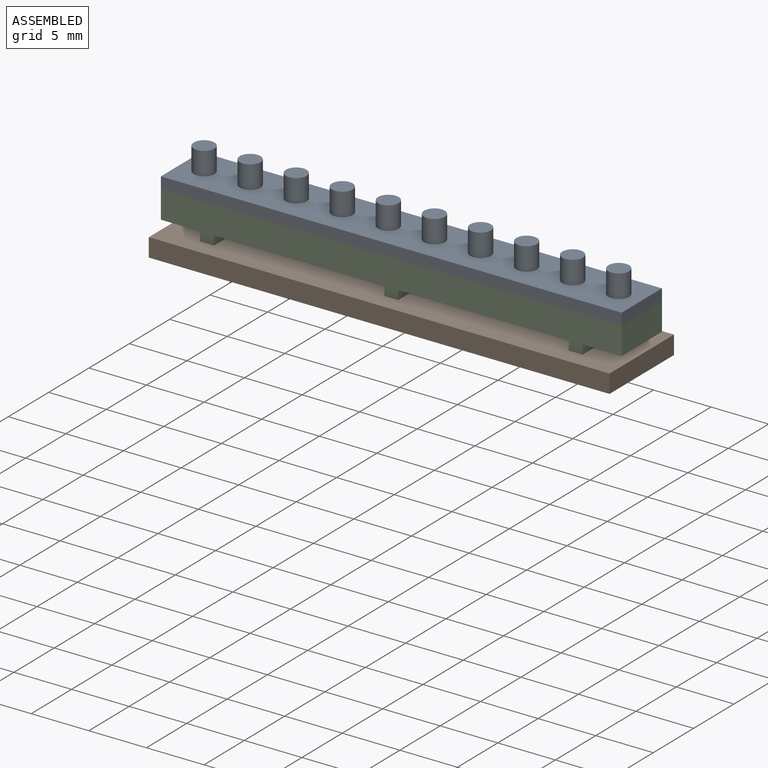
[diagram: assembled view]
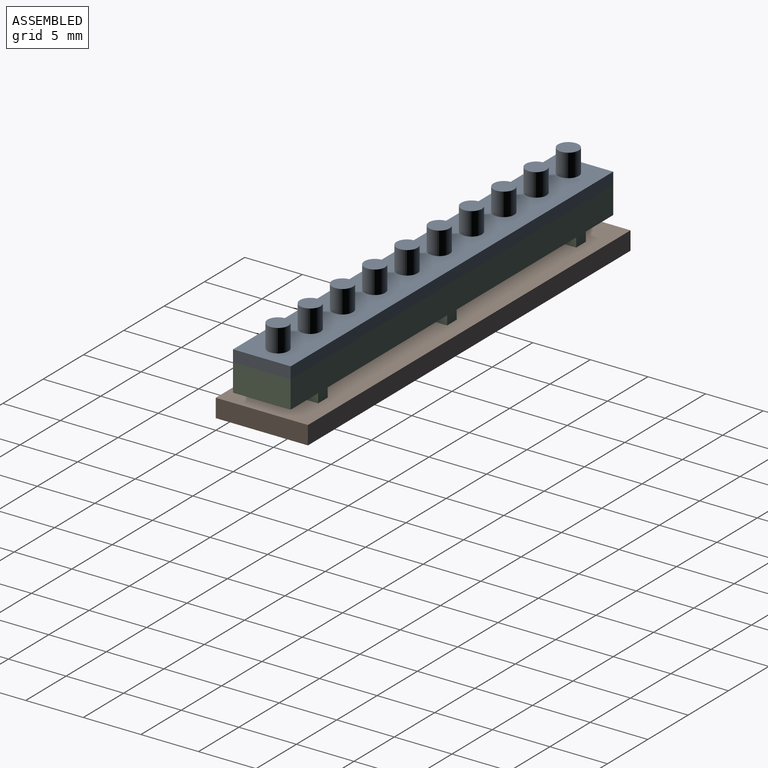
[diagram: assembled view, second angle]
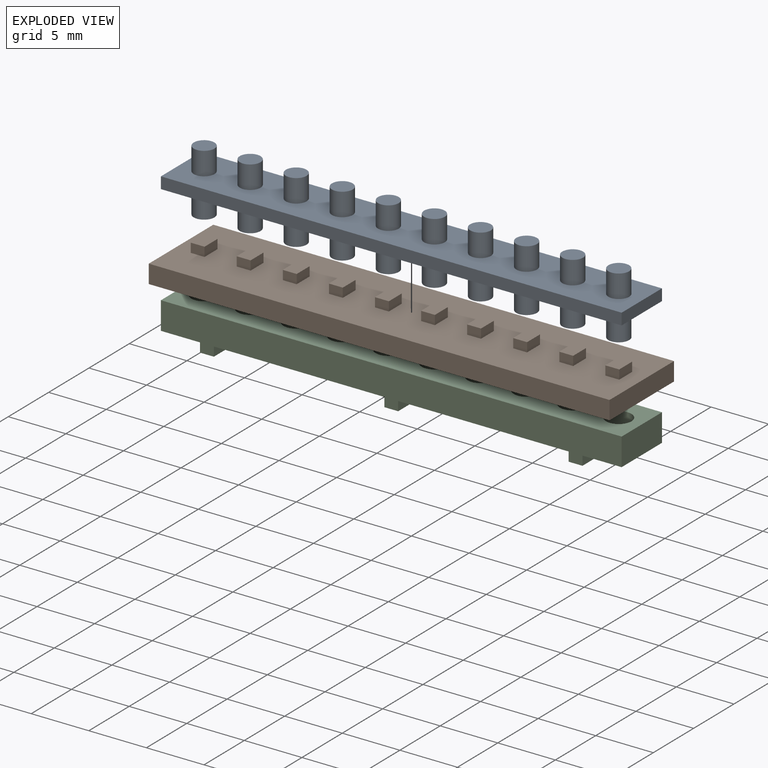
[diagram: exploded view]
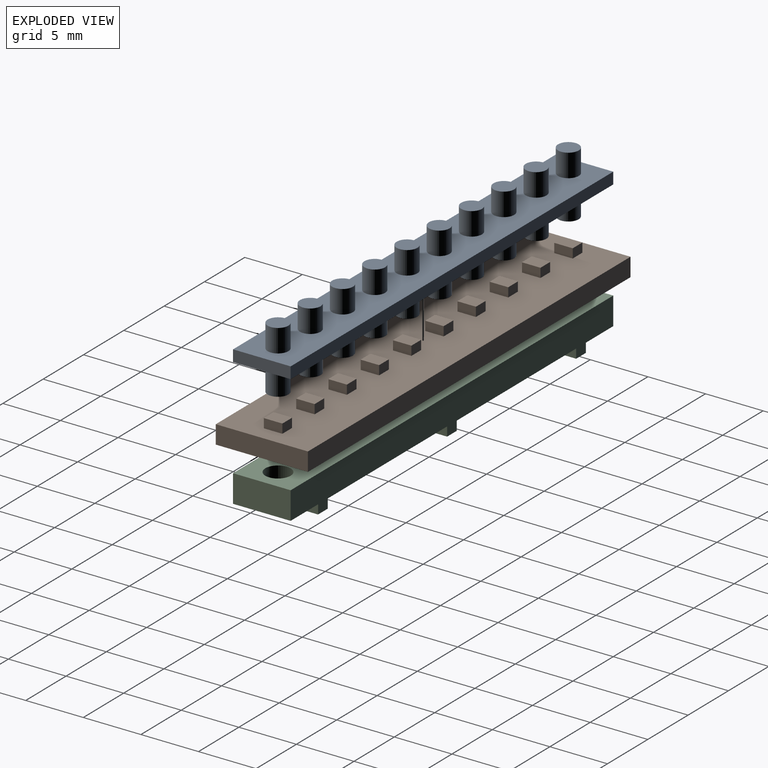
[diagram: exploded view, second angle]
ASSEMBLY  parts=3 mates=2
PART A: 46 faces, bbox 40x5x5.4 mm
  f0: cylinder r=0.9mm len=2mm, axis (0,0,-1), area 11.3mm2, adj f1,f5
  f1: plane 1.8x1.8mm, normal (0,0,1), area 2.5mm2, adj f0
  f2: plane 40x1mm, normal (0,1,0), area 40mm2, adj f3,f5,f6,f43
  f3: plane 5x1mm, normal (-1,0,0), area 5mm2, adj f2,f4,f5,f6
  f4: plane 40x1mm, normal (0,-1,0), area 40mm2, adj f3,f5,f6,f43
  f5: plane 40x5mm, normal (0,0,1), area 174.6mm2, adj f0,f2,f3,f4,f9,f13,f17,f21
  f6: plane 40x5mm, normal (0,0,-1), area 174.6mm2, adj f2,f3,f4,f8,f12,f16,f20,f24
  f7: plane 1.8x1.8mm, normal (0,0,-1), area 2.5mm2, adj f8
  f8: cylinder r=0.9mm len=2.4mm, axis (0,0,-1), area 13.6mm2, adj f6,f7
  f9: cylinder r=0.9mm len=2mm, axis (0,0,-1), area 11.3mm2, adj f5,f10
  f10: plane 1.8x1.8mm, normal (0,0,1), area 2.5mm2, adj f9
  f11: plane 1.8x1.8mm, normal (0,0,-1), area 2.5mm2, adj f12
  f12: cylinder r=0.9mm len=2.4mm, axis (0,0,-1), area 13.6mm2, adj f6,f11
  f13: cylinder r=0.9mm len=2mm, axis (0,0,-1), area 11.3mm2, adj f5,f14
  f14: plane 1.8x1.8mm, normal (0,0,1), area 2.5mm2, adj f13
  f15: plane 1.8x1.8mm, normal (0,0,-1), area 2.5mm2, adj f16
  f16: cylinder r=0.9mm len=2.4mm, axis (0,0,-1), area 13.6mm2, adj f6,f15
  f17: cylinder r=0.9mm len=2mm, axis (0,0,-1), area 11.3mm2, adj f5,f18
  f18: plane 1.8x1.8mm, normal (0,0,1), area 2.5mm2, adj f17
  f19: plane 1.8x1.8mm, normal (0,0,-1), area 2.5mm2, adj f20
  f20: cylinder r=0.9mm len=2.4mm, axis (0,0,-1), area 13.6mm2, adj f6,f19
  f21: cylinder r=0.9mm len=2mm, axis (0,0,-1), area 11.3mm2, adj f5,f22
  f22: plane 1.8x1.8mm, normal (0,0,1), area 2.5mm2, adj f21
  f23: plane 1.8x1.8mm, normal (0,0,-1), area 2.5mm2, adj f24
  f24: cylinder r=0.9mm len=2.4mm, axis (0,0,-1), area 13.6mm2, adj f6,f23
  f25: cylinder r=0.9mm len=2mm, axis (0,0,-1), area 11.3mm2, adj f5,f26
  f26: plane 1.8x1.8mm, normal (0,0,1), area 2.5mm2, adj f25
  f27: plane 1.8x1.8mm, normal (0,0,-1), area 2.5mm2, adj f28
  f28: cylinder r=0.9mm len=2.4mm, axis (0,0,-1), area 13.6mm2, adj f6,f27
  f29: cylinder r=0.9mm len=2mm, axis (0,0,-1), area 11.3mm2, adj f5,f30
  f30: plane 1.8x1.8mm, normal (0,0,1), area 2.5mm2, adj f29
  f31: plane 1.8x1.8mm, normal (0,0,-1), area 2.5mm2, adj f32
  f32: cylinder r=0.9mm len=2.4mm, axis (0,0,-1), area 13.6mm2, adj f6,f31
  f33: cylinder r=0.9mm len=2mm, axis (0,0,-1), area 11.3mm2, adj f5,f34
  f34: plane 1.8x1.8mm, normal (0,0,1), area 2.5mm2, adj f33
  f35: plane 1.8x1.8mm, normal (0,0,-1), area 2.5mm2, adj f36
  f36: cylinder r=0.9mm len=2.4mm, axis (0,0,-1), area 13.6mm2, adj f6,f35
  f37: cylinder r=0.9mm len=2mm, axis (0,0,-1), area 11.3mm2, adj f5,f38
  f38: plane 1.8x1.8mm, normal (0,0,1), area 2.5mm2, adj f37
  f39: plane 1.8x1.8mm, normal (0,0,-1), area 2.5mm2, adj f40
  f40: cylinder r=0.9mm len=2.4mm, axis (0,0,-1), area 13.6mm2, adj f6,f39
  f41: cylinder r=0.9mm len=2mm, axis (0,0,-1), area 11.3mm2, adj f5,f42
  f42: plane 1.8x1.8mm, normal (0,0,1), area 2.5mm2, adj f41
  f43: plane 5x1mm, normal (1,0,0), area 5mm2, adj f2,f4,f5,f6
  f44: plane 1.8x1.8mm, normal (0,0,-1), area 2.5mm2, adj f45
  f45: cylinder r=0.9mm len=2.4mm, axis (0,0,-1), area 13.6mm2, adj f6,f44
PART B: 56 faces, bbox 40x8x2.4 mm
  f0: plane 40x8mm, normal (0,0,1), area 300.8mm2, adj f1,f2,f3,f4,f6,f7,f8,f9
  f1: plane 8x1.6mm, normal (1,0,0), area 12.8mm2, adj f0,f2,f4,f5
  f2: plane 40x1.6mm, normal (0,1,0), area 64mm2, adj f0,f1,f3,f5
  f3: plane 8x1.6mm, normal (-1,0,0), area 12.8mm2, adj f0,f2,f4,f5
  f4: plane 40x1.6mm, normal (0,-1,0), area 64mm2, adj f0,f1,f3,f5
  f5: plane 40x8mm, normal (0,0,-1), area 320mm2, adj f1,f2,f3,f4
  f6: plane 1.6x0.8mm, normal (1,0,0), area 1.3mm2, adj f0,f7,f9,f10
  f7: plane 1.2x0.8mm, normal (0,1,0), area 1mm2, adj f0,f6,f8,f10
  f8: plane 1.6x0.8mm, normal (-1,0,0), area 1.3mm2, adj f0,f7,f9,f10
  f9: plane 1.2x0.8mm, normal (0,-1,0), area 1mm2, adj f0,f6,f8,f10
  f10: plane 1.6x1.2mm, normal (0,0,1), area 1.9mm2, adj f6,f7,f8,f9
  f11: plane 1.6x0.8mm, normal (1,0,0), area 1.3mm2, adj f0,f12,f14,f15
  f12: plane 1.2x0.8mm, normal (0,1,0), area 1mm2, adj f0,f11,f13,f15
  f13: plane 1.6x0.8mm, normal (-1,0,0), area 1.3mm2, adj f0,f12,f14,f15
  f14: plane 1.2x0.8mm, normal (0,-1,0), area 1mm2, adj f0,f11,f13,f15
  f15: plane 1.6x1.2mm, normal (0,0,1), area 1.9mm2, adj f11,f12,f13,f14
  f16: plane 1.6x0.8mm, normal (1,0,0), area 1.3mm2, adj f0,f17,f19,f20
  f17: plane 1.2x0.8mm, normal (0,1,0), area 1mm2, adj f0,f16,f18,f20
  f18: plane 1.6x0.8mm, normal (-1,0,0), area 1.3mm2, adj f0,f17,f19,f20
  f19: plane 1.2x0.8mm, normal (0,-1,0), area 1mm2, adj f0,f16,f18,f20
  f20: plane 1.6x1.2mm, normal (0,0,1), area 1.9mm2, adj f16,f17,f18,f19
  f21: plane 1.6x0.8mm, normal (1,0,0), area 1.3mm2, adj f0,f22,f24,f25
  f22: plane 1.2x0.8mm, normal (0,1,0), area 1mm2, adj f0,f21,f23,f25
  f23: plane 1.6x0.8mm, normal (-1,0,0), area 1.3mm2, adj f0,f22,f24,f25
  f24: plane 1.2x0.8mm, normal (0,-1,0), area 1mm2, adj f0,f21,f23,f25
  f25: plane 1.6x1.2mm, normal (0,0,1), area 1.9mm2, adj f21,f22,f23,f24
  f26: plane 1.6x0.8mm, normal (1,0,0), area 1.3mm2, adj f0,f27,f29,f30
  f27: plane 1.2x0.8mm, normal (0,1,0), area 1mm2, adj f0,f26,f28,f30
  f28: plane 1.6x0.8mm, normal (-1,0,0), area 1.3mm2, adj f0,f27,f29,f30
  f29: plane 1.2x0.8mm, normal (0,-1,0), area 1mm2, adj f0,f26,f28,f30
  f30: plane 1.6x1.2mm, normal (0,0,1), area 1.9mm2, adj f26,f27,f28,f29
  f31: plane 1.6x0.8mm, normal (1,0,0), area 1.3mm2, adj f0,f32,f34,f35
  f32: plane 1.2x0.8mm, normal (0,1,0), area 1mm2, adj f0,f31,f33,f35
  f33: plane 1.6x0.8mm, normal (-1,0,0), area 1.3mm2, adj f0,f32,f34,f35
  f34: plane 1.2x0.8mm, normal (0,-1,0), area 1mm2, adj f0,f31,f33,f35
  f35: plane 1.6x1.2mm, normal (0,0,1), area 1.9mm2, adj f31,f32,f33,f34
  f36: plane 1.6x0.8mm, normal (1,0,0), area 1.3mm2, adj f0,f37,f39,f40
  f37: plane 1.2x0.8mm, normal (0,1,0), area 1mm2, adj f0,f36,f38,f40
  f38: plane 1.6x0.8mm, normal (-1,0,0), area 1.3mm2, adj f0,f37,f39,f40
  f39: plane 1.2x0.8mm, normal (0,-1,0), area 1mm2, adj f0,f36,f38,f40
  f40: plane 1.6x1.2mm, normal (0,0,1), area 1.9mm2, adj f36,f37,f38,f39
  f41: plane 1.6x0.8mm, normal (1,0,0), area 1.3mm2, adj f0,f42,f44,f45
  f42: plane 1.2x0.8mm, normal (0,1,0), area 1mm2, adj f0,f41,f43,f45
  f43: plane 1.6x0.8mm, normal (-1,0,0), area 1.3mm2, adj f0,f42,f44,f45
  f44: plane 1.2x0.8mm, normal (0,-1,0), area 1mm2, adj f0,f41,f43,f45
  f45: plane 1.6x1.2mm, normal (0,0,1), area 1.9mm2, adj f41,f42,f43,f44
  f46: plane 1.6x0.8mm, normal (1,0,0), area 1.3mm2, adj f0,f47,f49,f50
  f47: plane 1.2x0.8mm, normal (0,1,0), area 1mm2, adj f0,f46,f48,f50
  f48: plane 1.6x0.8mm, normal (-1,0,0), area 1.3mm2, adj f0,f47,f49,f50
  f49: plane 1.2x0.8mm, normal (0,-1,0), area 1mm2, adj f0,f46,f48,f50
  f50: plane 1.6x1.2mm, normal (0,0,1), area 1.9mm2, adj f46,f47,f48,f49
  f51: plane 1.6x0.8mm, normal (1,0,0), area 1.3mm2, adj f0,f52,f54,f55
  f52: plane 1.2x0.8mm, normal (0,1,0), area 1mm2, adj f0,f51,f53,f55
  f53: plane 1.6x0.8mm, normal (-1,0,0), area 1.3mm2, adj f0,f52,f54,f55
  f54: plane 1.2x0.8mm, normal (0,-1,0), area 1mm2, adj f0,f51,f53,f55
  f55: plane 1.6x1.2mm, normal (0,0,1), area 1.9mm2, adj f51,f52,f53,f54
PART C: 28 faces, bbox 40x5x3.2 mm
  f0: plane 14.8x5mm, normal (0,0,-1), area 58.8mm2, adj f4,f6,f7,f8,f9,f15,f23,f25
  f1: plane 14.8x5mm, normal (0,0,-1), area 58.8mm2, adj f4,f10,f11,f12,f13,f15,f19,f22
  f2: plane 5x3.4mm, normal (0,0,-1), area 13.2mm2, adj f4,f5,f14,f15,f20
  f3: plane 5x2.4mm, normal (1,0,0), area 12mm2, adj f4,f15,f17,f18
  f4: plane 40x3.2mm, normal (0,1,0), area 98.9mm2, adj f0,f1,f2,f3,f5,f17,f18,f19
  f5: plane 5x2.4mm, normal (-1,0,0), area 12mm2, adj f2,f4,f15,f17
  f6: cylinder r=1.1mm len=2.4mm, axis (0,0,-1), area 16.6mm2, adj f0,f17
  f7: cylinder r=1.1mm len=2.4mm, axis (0,0,-1), area 16.6mm2, adj f0,f17
  f8: cylinder r=1.1mm len=2.4mm, axis (0,0,-1), area 16.6mm2, adj f0,f17
  f9: cylinder r=1.1mm len=2.4mm, axis (0,0,-1), area 16.6mm2, adj f0,f17
  f10: cylinder r=1.1mm len=2.4mm, axis (0,0,-1), area 16.6mm2, adj f1,f17
  f11: cylinder r=1.1mm len=2.4mm, axis (0,0,-1), area 16.6mm2, adj f1,f17
  f12: cylinder r=1.1mm len=2.4mm, axis (0,0,-1), area 16.6mm2, adj f1,f17
  f13: cylinder r=1.1mm len=2.4mm, axis (0,0,-1), area 16.6mm2, adj f1,f17
  f14: cylinder r=1.1mm len=2.4mm, axis (0,0,-1), area 16.6mm2, adj f2,f17
  f15: plane 40x3.2mm, normal (0,-1,0), area 98.9mm2, adj f0,f1,f2,f3,f5,f17,f18,f19
  f16: cylinder r=1.1mm len=2.4mm, axis (0,0,-1), area 16.6mm2, adj f17,f18
  f17: plane 40x5mm, normal (0,0,1), area 162mm2, adj f3,f4,f5,f6,f7,f8,f9,f10
  f18: plane 5x3.4mm, normal (0,0,-1), area 13.2mm2, adj f3,f4,f15,f16,f26
  f19: plane 5x0.8mm, normal (1,0,0), area 4mm2, adj f1,f4,f15,f21
  f20: plane 5x0.8mm, normal (-1,0,0), area 4mm2, adj f2,f4,f15,f21
  f21: plane 5x1.2mm, normal (0,0,-1), area 6mm2, adj f4,f15,f19,f20
  f22: plane 5x0.8mm, normal (-1,0,0), area 4mm2, adj f1,f4,f15,f24
  f23: plane 5x0.8mm, normal (1,0,0), area 4mm2, adj f0,f4,f15,f24
  f24: plane 5x1.2mm, normal (0,0,-1), area 6mm2, adj f4,f15,f22,f23
  f25: plane 5x0.8mm, normal (-1,0,0), area 4mm2, adj f0,f4,f15,f27
  f26: plane 5x0.8mm, normal (1,0,0), area 4mm2, adj f4,f15,f18,f27
  f27: plane 5x1.2mm, normal (0,0,-1), area 6mm2, adj f4,f15,f25,f26
PLACE A t=(-18,0,2.4)mm
PLACE B at identity
PLACE C t=(-18,0,2.4)mm
MATE fastened A.f41 <-> C.f16  axis (0,0,-1) through (18,0,2.4)mm
MATE fastened B.f55 <-> A.f41  axis (0,0,1) through (18,0,2.4)mm
